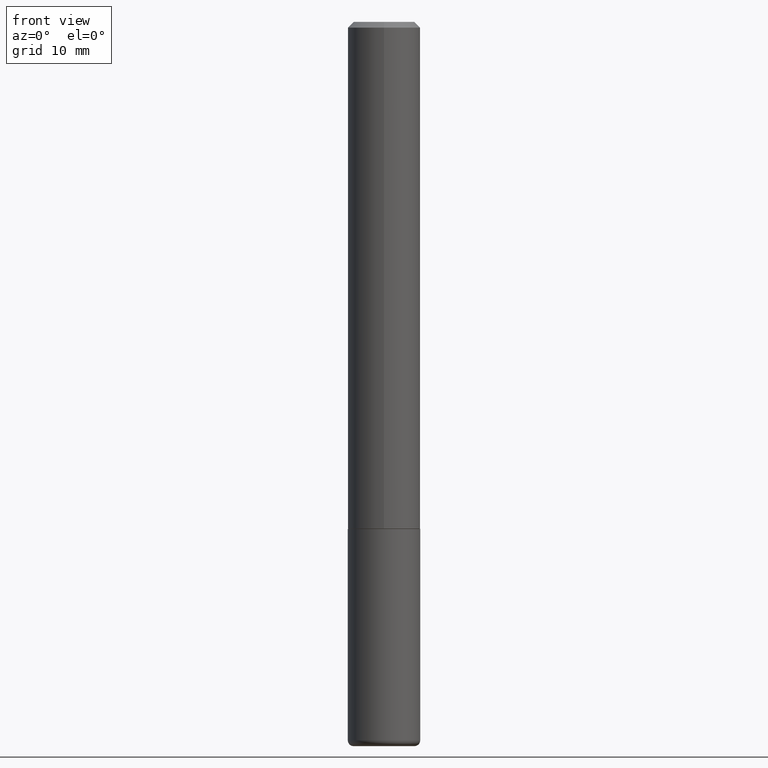
[diagram: clean part render]
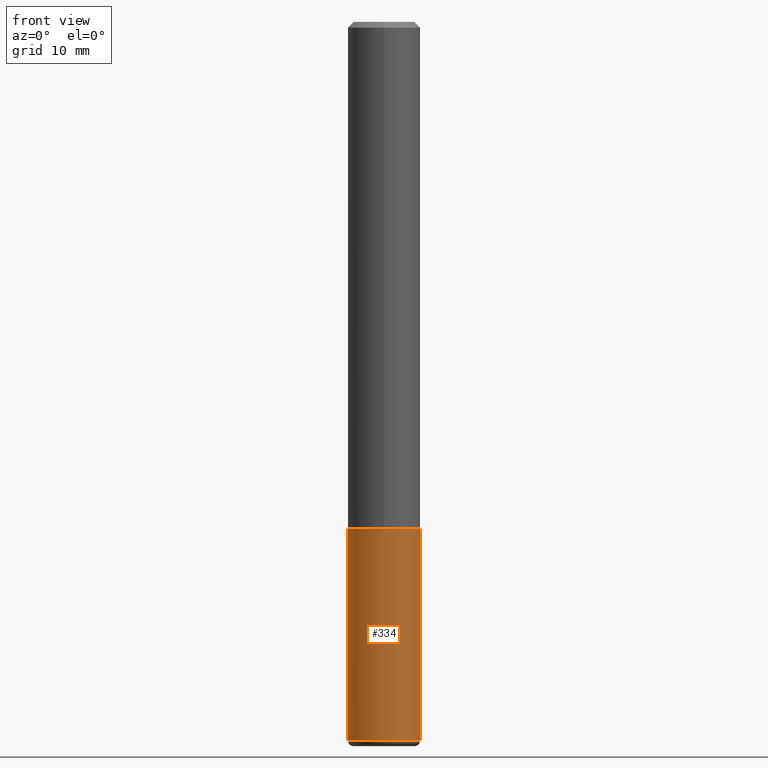
[diagram: same view with one face highlighted and labeled with its STEP entity id]
A machine part, front view. The second image highlights one B-rep face of the part: STEP entity #334.
In plain terms, the highlighted cylindrical surface (edge-blend (fillet) strip) has radius 3.175 mm, axis along (-0, 0, 1).
Its self-contained STEP definition (entity closure, byte-faithful):
#7 = AXIS2_PLACEMENT_3D ( 'NONE', #172, #295, #64 ) ;
#20 = LINE ( 'NONE', #372, #78 ) ;
#21 = VERTEX_POINT ( 'NONE', #361 ) ;
#36 = FACE_OUTER_BOUND ( 'NONE', #74, .T. ) ;
#56 = CARTESIAN_POINT ( 'NONE',  ( -0.1250000000000000000, 8.881784197001252323E-16, -6.148668862818632227E-30 ) ) ;
#64 = DIRECTION ( 'NONE',  ( 1.000000000000000000, -6.982962677686266711E-15, 4.876176775795935793E-29 ) ) ;
#74 = EDGE_LOOP ( 'NONE', ( #131, #279, #335, #181 ) ) ;
#78 = VECTOR ( 'NONE', #88, 39.37007874015748143 ) ;
#81 = CARTESIAN_POINT ( 'NONE',  ( 6.064762639339139522E-29, -8.658873720331001644E-15, -2.480000000000000426 ) ) ;
#88 = DIRECTION ( 'NONE',  ( -2.445468806185136877E-29, 3.491481338843145188E-15, 1.000000000000000000 ) ) ;
#111 = DIRECTION ( 'NONE',  ( -2.445468806185136597E-29, 3.491481338843145583E-15, 1.000000000000000000 ) ) ;
#131 = ORIENTED_EDGE ( 'NONE', *, *, #214, .F. ) ;
#135 = VECTOR ( 'NONE', #314, 39.37007874015748143 ) ;
#146 = VERTEX_POINT ( 'NONE', #219 ) ;
#147 = EDGE_CURVE ( 'NONE', #241, #146, #406, .T. ) ;
#161 = CARTESIAN_POINT ( 'NONE',  ( -0.1250000000000000000, -6.496304611953128320E-15, -1.750000000000000222 ) ) ;
#172 = CARTESIAN_POINT ( 'NONE',  ( 0.000000000000000000, 0.000000000000000000, 0.000000000000000000 ) ) ;
#181 = ORIENTED_EDGE ( 'NONE', *, *, #288, .F. ) ;
#201 = DIRECTION ( 'NONE',  ( 1.000000000000000000, -6.982962677686262766E-15, 0.000000000000000000 ) ) ;
#209 = EDGE_CURVE ( 'NONE', #146, #21, #20, .T. ) ;
#214 = EDGE_CURVE ( 'NONE', #241, #218, #341, .T. ) ;
#218 = VERTEX_POINT ( 'NONE', #161 ) ;
#219 = CARTESIAN_POINT ( 'NONE',  ( 0.1250000000000000555, -9.531744055041784983E-15, -2.480000000000000426 ) ) ;
#241 = VERTEX_POINT ( 'NONE', #291 ) ;
#250 = DIRECTION ( 'NONE',  ( 1.000000000000000000, -6.982962677686263555E-15, 0.000000000000000000 ) ) ;
#262 = CYLINDRICAL_SURFACE ( 'NONE', #7, 0.1250000000000000000 ) ;
#279 = ORIENTED_EDGE ( 'NONE', *, *, #147, .T. ) ;
#288 = EDGE_CURVE ( 'NONE', #218, #21, #408, .T. ) ;
#291 = CARTESIAN_POINT ( 'NONE',  ( -0.1250000000000000555, -7.770695300630876412E-15, -2.480000000000000426 ) ) ;
#295 = DIRECTION ( 'NONE',  ( -2.445468806185136597E-29, 3.491481338843145583E-15, 1.000000000000000000 ) ) ;
#314 = DIRECTION ( 'NONE',  ( -2.445468806185136877E-29, 3.491481338843145188E-15, 1.000000000000000000 ) ) ;
#318 = DIRECTION ( 'NONE',  ( -2.445468806185136597E-29, 3.491481338843145583E-15, 1.000000000000000000 ) ) ;
#332 = AXIS2_PLACEMENT_3D ( 'NONE', #349, #318, #201 ) ;
#334 = ADVANCED_FACE ( 'NONE', ( #36 ), #262, .T. ) ;
#335 = ORIENTED_EDGE ( 'NONE', *, *, #209, .T. ) ;
#341 = LINE ( 'NONE', #56, #135 ) ;
#349 = CARTESIAN_POINT ( 'NONE',  ( 4.279570410823989044E-29, -6.110092342975505460E-15, -1.750000000000000222 ) ) ;
#361 = CARTESIAN_POINT ( 'NONE',  ( 0.1250000000000000000, -6.982962677686288010E-15, -1.750000000000000222 ) ) ;
#372 = CARTESIAN_POINT ( 'NONE',  ( 0.1250000000000000000, -8.728703347107833388E-16, 6.095220969744919741E-30 ) ) ;
#386 = AXIS2_PLACEMENT_3D ( 'NONE', #81, #111, #250 ) ;
#406 = CIRCLE ( 'NONE', #386, 0.1249999999999999861 ) ;
#408 = CIRCLE ( 'NONE', #332, 0.1250000000000000000 ) ;